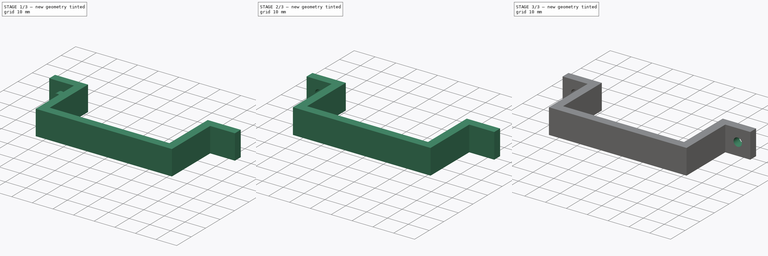
[diagram: build sequence overview — one tinted view per stage of 3, left to right]
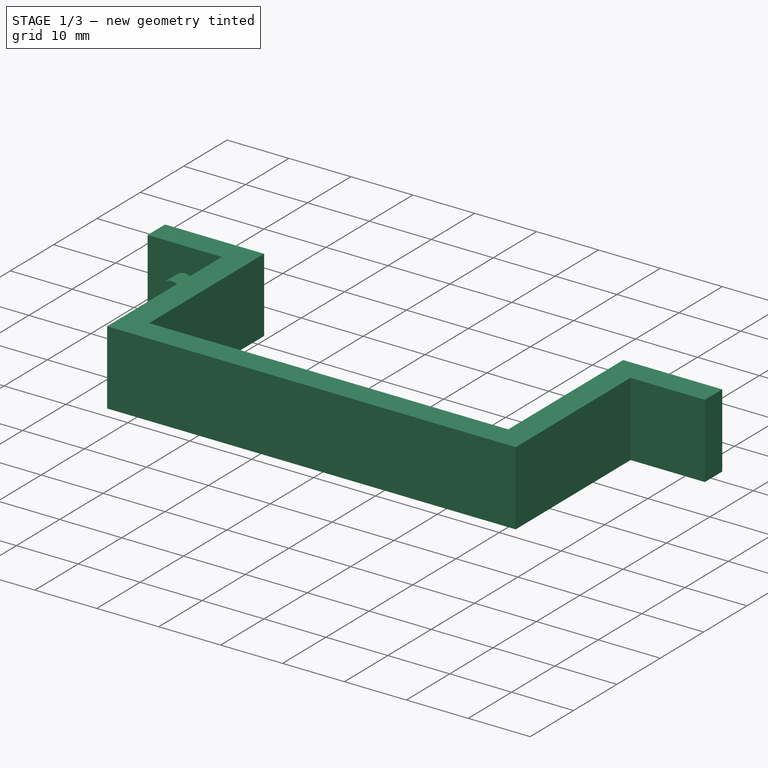
[diagram: stage 1 of 3 — iso view after this stage's code; geometry added in this stage tinted green]
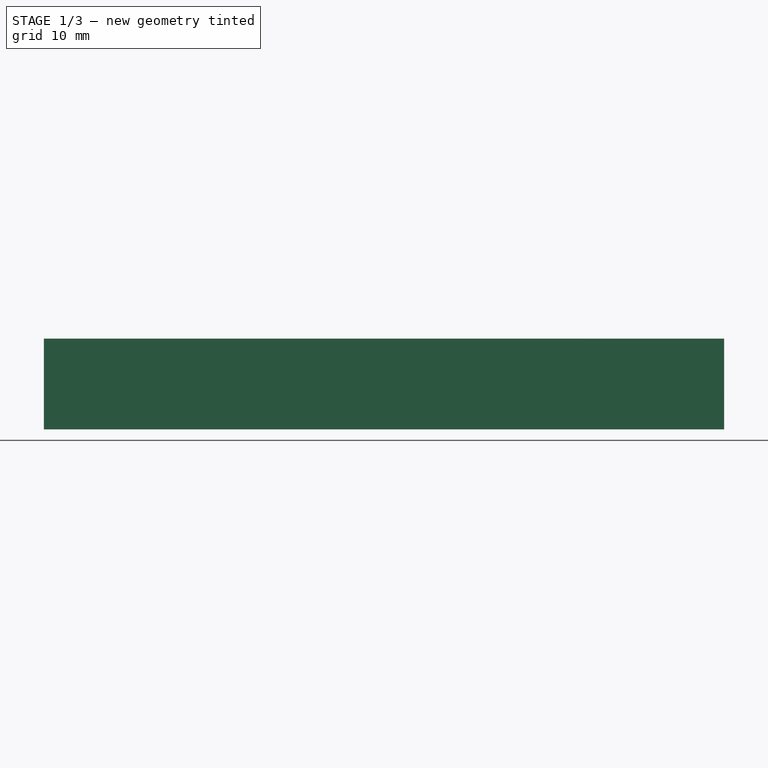
[diagram: stage 1 of 3 — front view after this stage's code; geometry added in this stage tinted green]
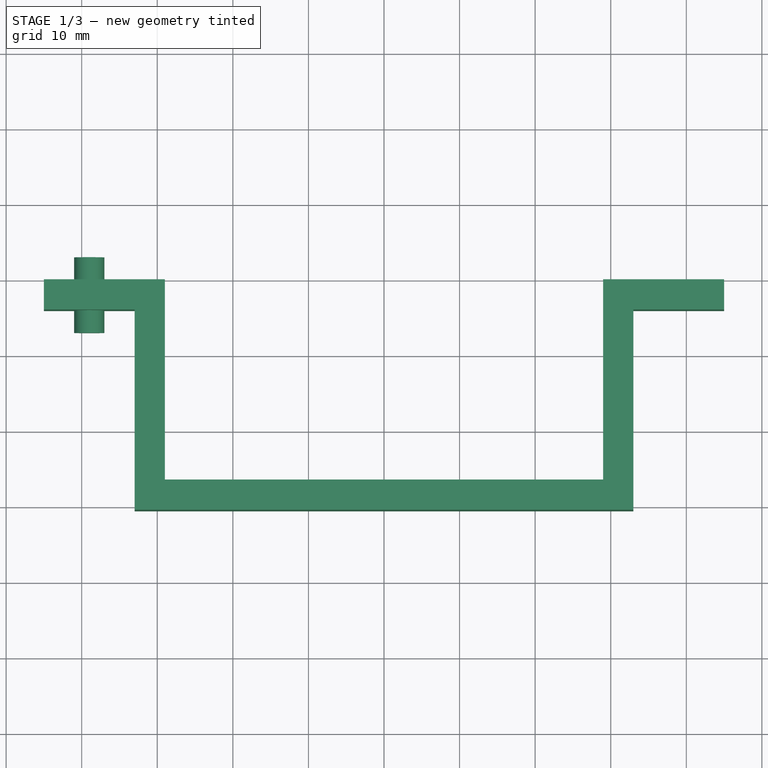
[diagram: stage 1 of 3 — top view after this stage's code; geometry added in this stage tinted green]
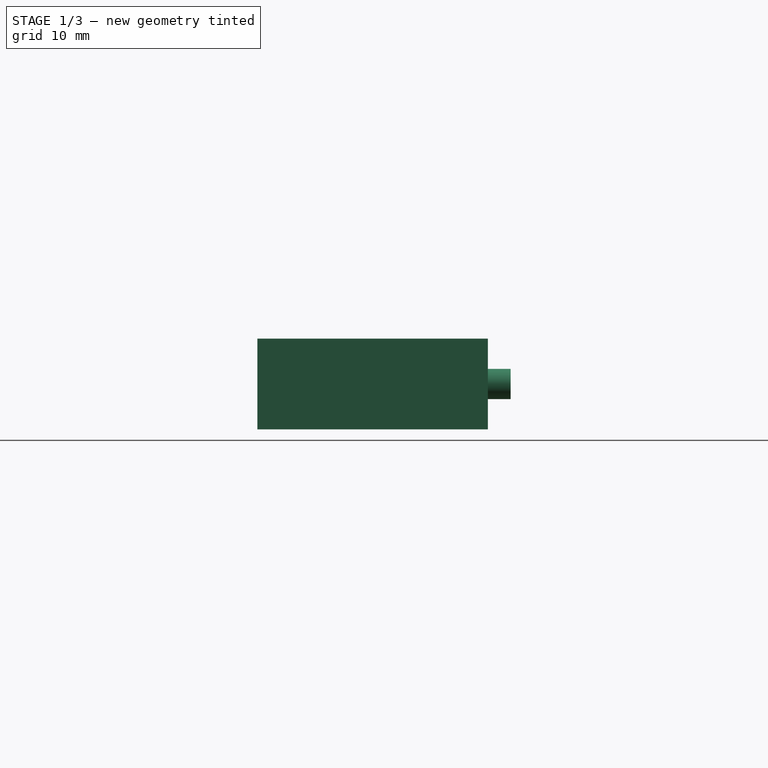
[diagram: stage 1 of 3 — right view after this stage's code; geometry added in this stage tinted green]
FCSTD DOCUMENT  (FreeCAD 0.18R4 (GitTag))
Label: sujatedor_zapatilla
License: CreativeCommons Attribution-ShareAlike
LicenseURL: http://creativecommons.org/licenses/by-sa/4.0/
objects: Part::Cylinder×2, Part::Cut×2, Sketcher::SketchObject×1, Part::Extrusion×1
note: 6 computed .brp shape members not serialized (recipe doc carries the construction recipe); baked Part::Feature solids carry a one-line shape summary decoded from their .brp

FEATURE [Sketcher::SketchObject] Sketch
  sketch-geometry (12):
    g0: LineSegment StartX=-29 StartY=-16.5 StartZ=0 EndX=29 EndY=-16.5 EndZ=0
    g1: LineSegment StartX=29 StartY=-16.5 StartZ=0 EndX=29 EndY=10 EndZ=0
    g2: LineSegment StartX=29 StartY=10 StartZ=0 EndX=45 EndY=10 EndZ=0
    g3: LineSegment StartX=45 StartY=10 StartZ=0 EndX=45 EndY=6 EndZ=0
    g4: LineSegment StartX=45 StartY=6 StartZ=0 EndX=33 EndY=6 EndZ=0
    g5: LineSegment StartX=33 StartY=6 StartZ=0 EndX=33 EndY=-20.5 EndZ=0
    g6: LineSegment StartX=33 StartY=-20.5 StartZ=0 EndX=-33 EndY=-20.5 EndZ=0
    g7: LineSegment StartX=-33 StartY=-20.5 StartZ=0 EndX=-33 EndY=6 EndZ=0
    g8: LineSegment StartX=-33 StartY=6 StartZ=0 EndX=-45 EndY=6 EndZ=0
    g9: LineSegment StartX=-45 StartY=6 StartZ=0 EndX=-45 EndY=10 EndZ=0
    g10: LineSegment StartX=-45 StartY=10 StartZ=0 EndX=-29 EndY=10 EndZ=0
    g11: LineSegment StartX=-29 StartY=10 StartZ=0 EndX=-29 EndY=-16.5 EndZ=0
  constraints (33):
    c: Coincident(g0,g1)
    c: Vertical(g1)
    c: Coincident(g1,g2)
    c: Horizontal(g2)
    c: Coincident(g2,g3)
    c: Coincident(g3,g4)
    c: Horizontal(g4)
    c: Coincident(g4,g5)
    c: Vertical(g5)
    c: Coincident(g5,g6)
    c: Coincident(g6,g7)
    c: Vertical(g7)
    c: Coincident(g7,g8)
    c: Horizontal(g8)
    c: Coincident(g8,g9)
    c: Vertical(g9)
    c: Coincident(g9,g10)
    c: Horizontal(g10)
    c: Coincident(g10,g11)
    c: Vertical(g11)
    c: Coincident(g0,g11)
    c: Symmetric(g0,g0,g-2)
    c: DistanceY(g6,g0) = 4
    c: DistanceX(g6,g0) = 4
    c: Symmetric(g6,g5,g-2)
    c: DistanceX(g10,g1) = 58
    c: DistanceX(g8,g7) = 12
    c: Vertical(g3)
    c: DistanceY(g0,g1) = 26.5
    c: DistanceY(g3,g2) = 4
    c: Symmetric(g8,g3,g-2)
    c: DistanceY(g8,g9) = 4
    c: DistanceY(g-1,g10) = 10
FEATURE [Part::Extrusion] Extrude
  Base = -> Sketch
  Dir = (0,0,1)
  DirMode = 2
  FaceMakerClass = Part::FaceMakerBullseye
  LengthFwd = 12
  LengthRev = 0
  Solid = true
  Symmetric = false
FEATURE [Part::Cylinder] Cylinder
  Angle = 360
  AttacherType = Attacher::AttachEngine3D
  Height = 10
  Placement = pos=(-39,13,6) rot=(1,0,0;1.5708rad)
  Radius = 2
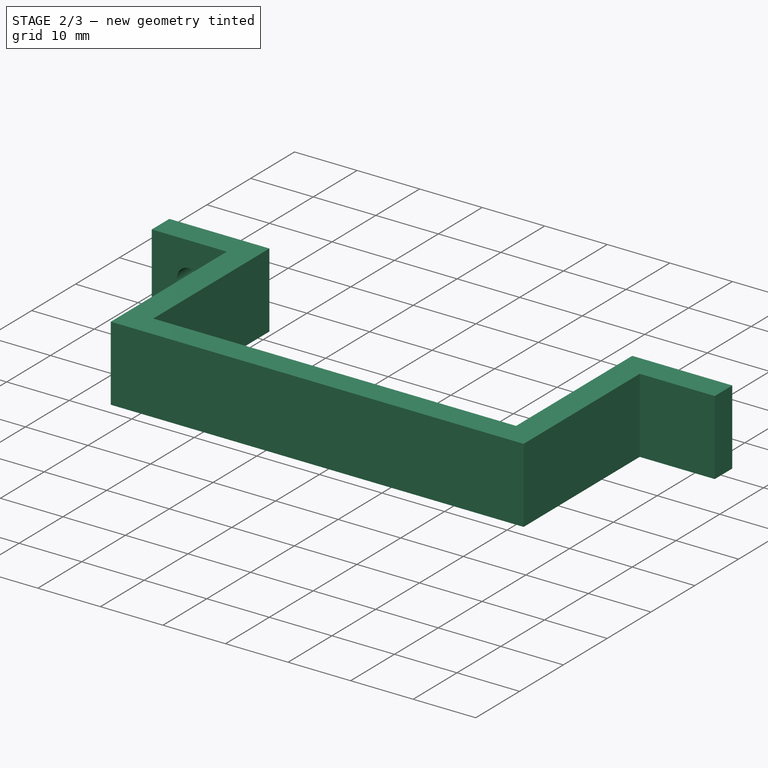
[diagram: stage 2 of 3 — iso view after this stage's code; geometry added in this stage tinted green]
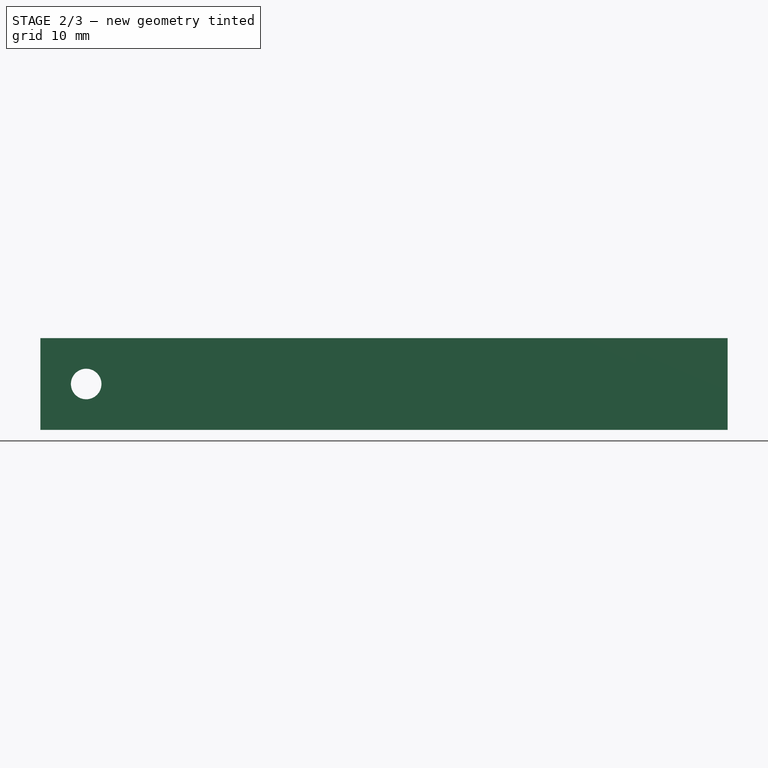
[diagram: stage 2 of 3 — front view after this stage's code; geometry added in this stage tinted green]
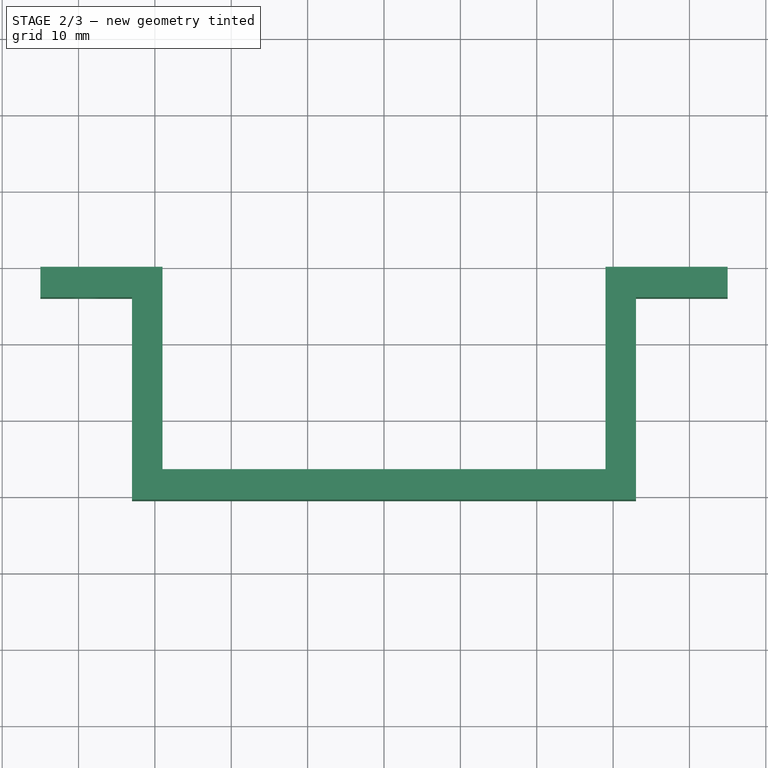
[diagram: stage 2 of 3 — top view after this stage's code; geometry added in this stage tinted green]
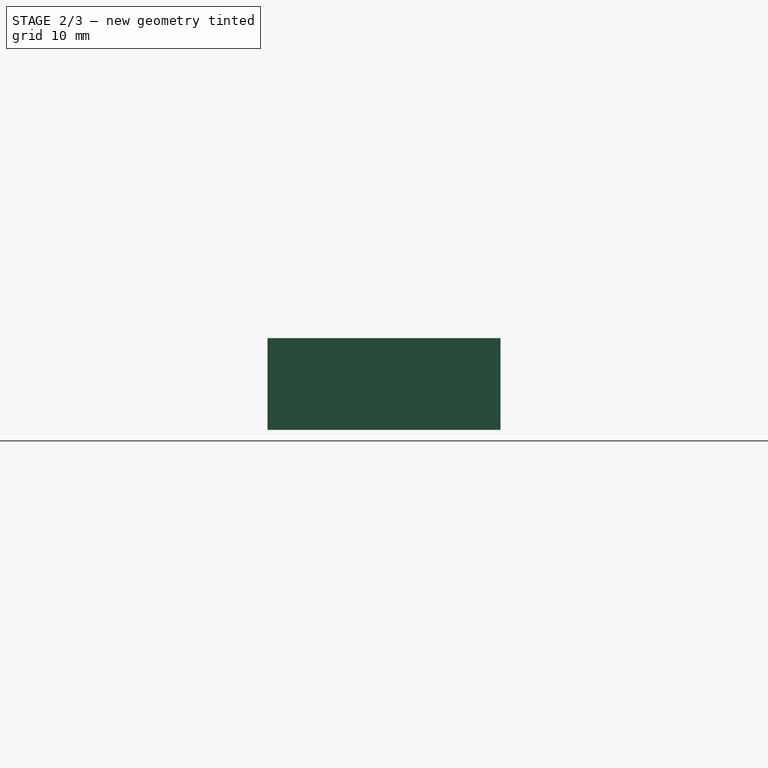
[diagram: stage 2 of 3 — right view after this stage's code; geometry added in this stage tinted green]
FEATURE [Part::Cut] Cut
  Base = -> Extrude
  Tool = -> Cylinder
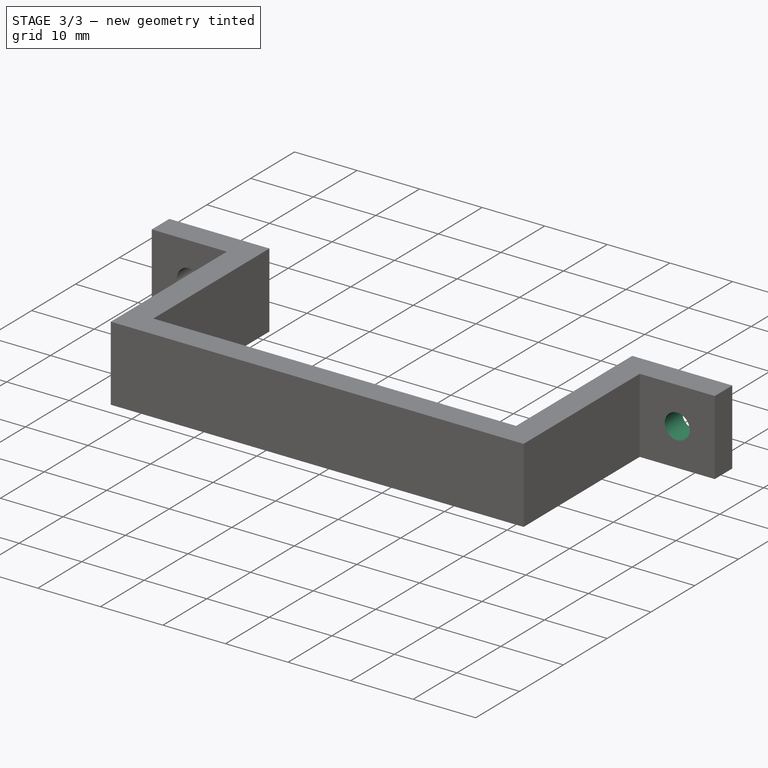
[diagram: stage 3 of 3 — iso view after this stage's code; geometry added in this stage tinted green]
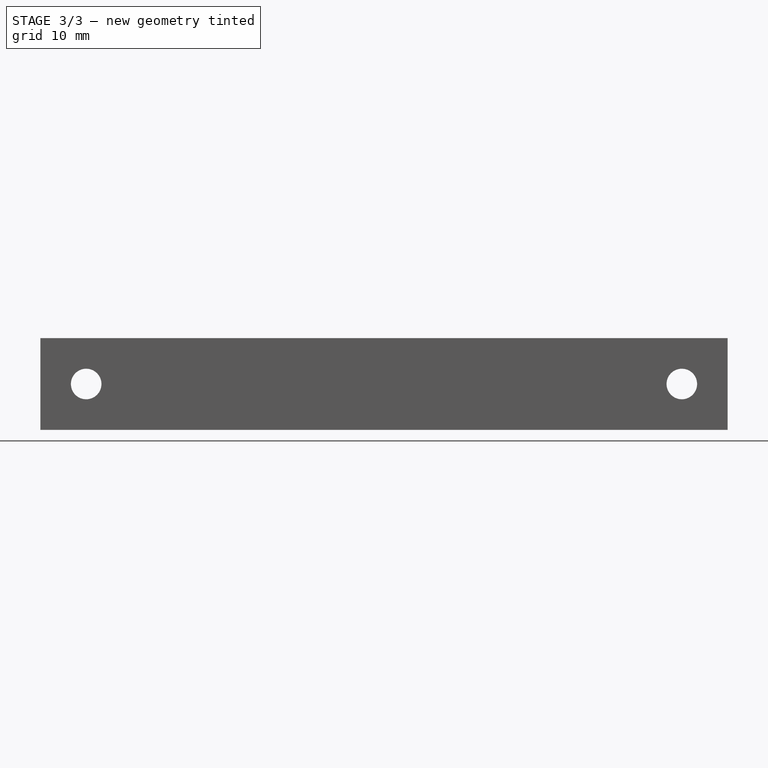
[diagram: stage 3 of 3 — front view after this stage's code; geometry added in this stage tinted green]
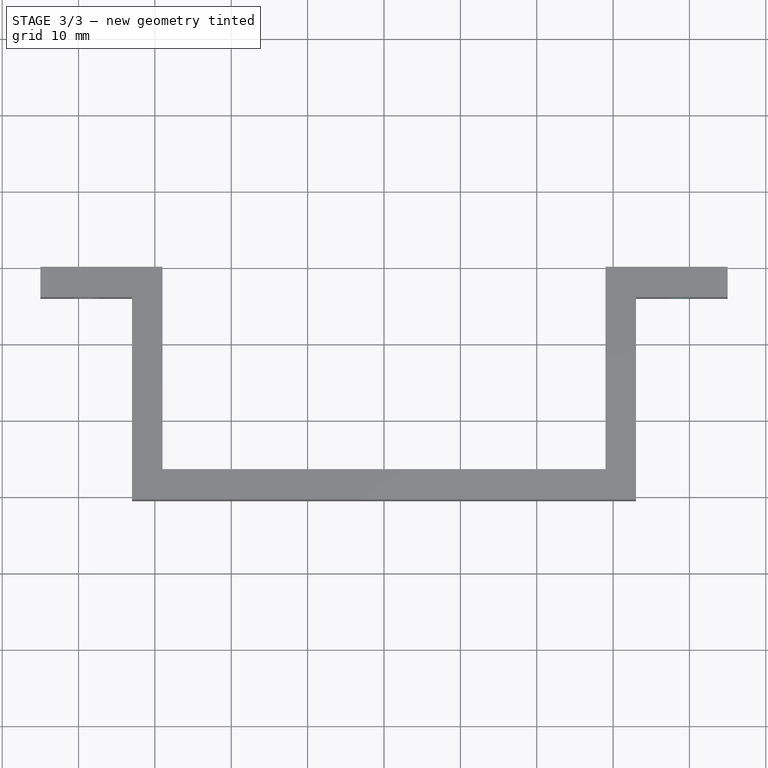
[diagram: stage 3 of 3 — top view after this stage's code; geometry added in this stage tinted green]
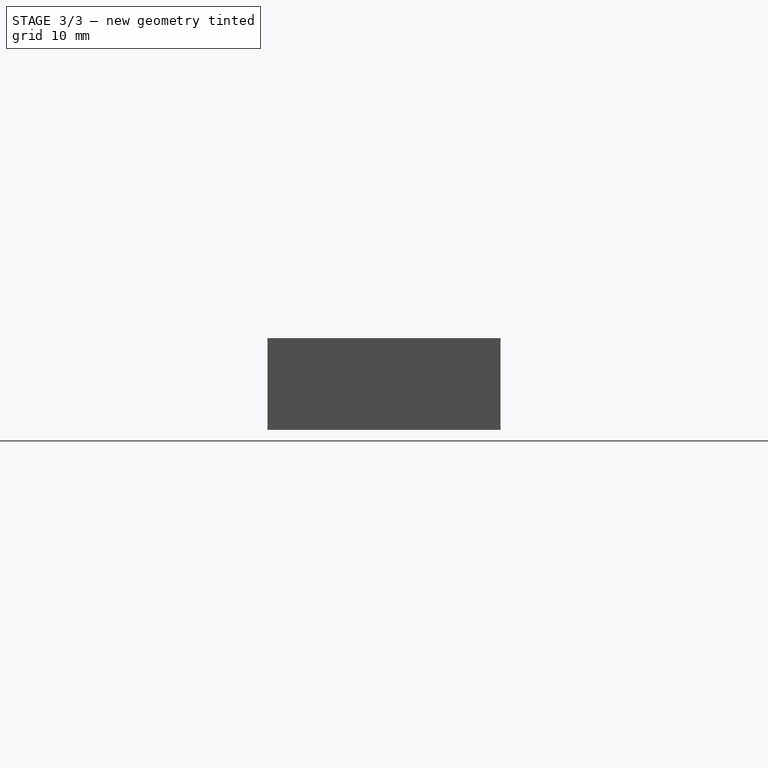
[diagram: stage 3 of 3 — right view after this stage's code; geometry added in this stage tinted green]
FEATURE [Part::Cylinder] Cylinder001
  Angle = 360
  AttacherType = Attacher::AttachEngine3D
  Height = 10
  Placement = pos=(39,13,6) rot=(1,0,0;1.5708rad)
  Radius = 2
FEATURE [Part::Cut] Cut001
  Base = -> Cut
  Tool = -> Cylinder001
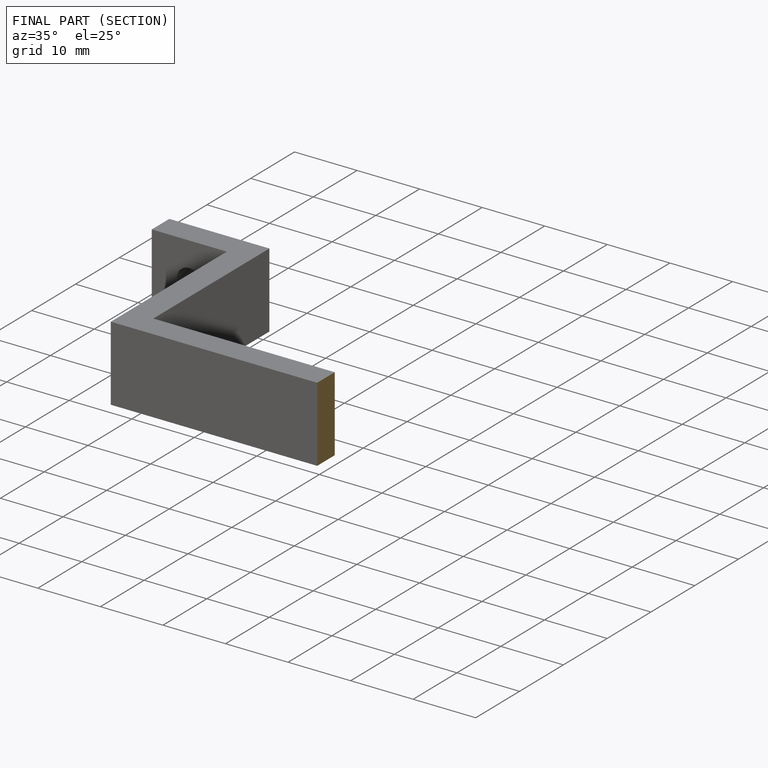
[diagram: finished part — half-section view (interior)]
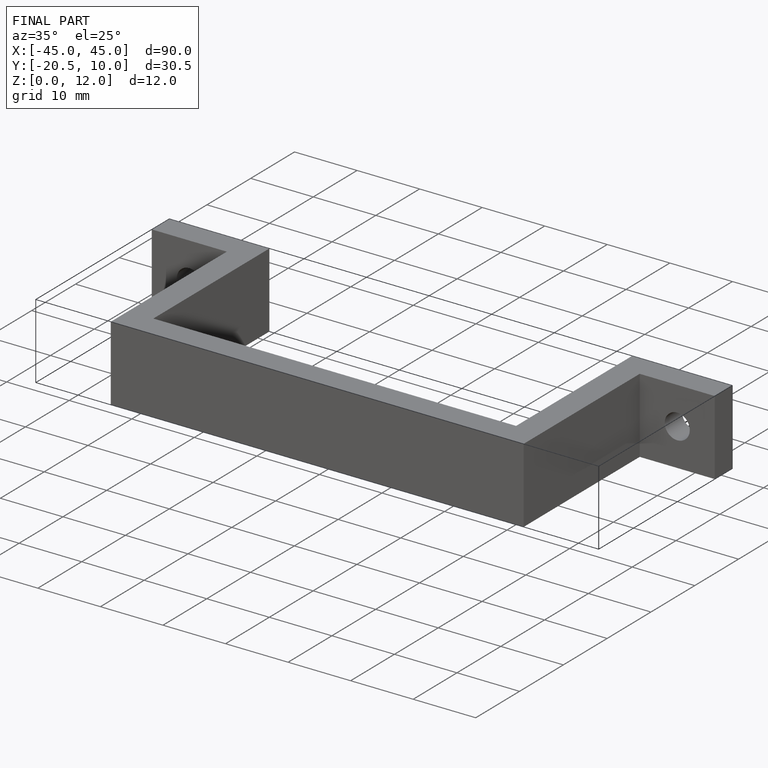
[diagram: finished part — iso view with bounding-box wireframe]
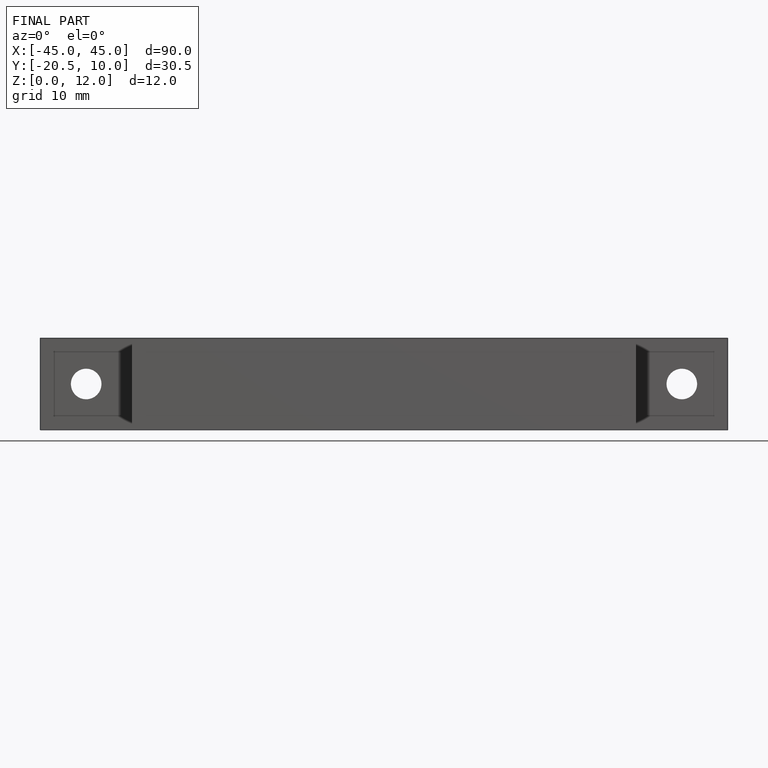
[diagram: finished part — front view with bounding-box wireframe]
